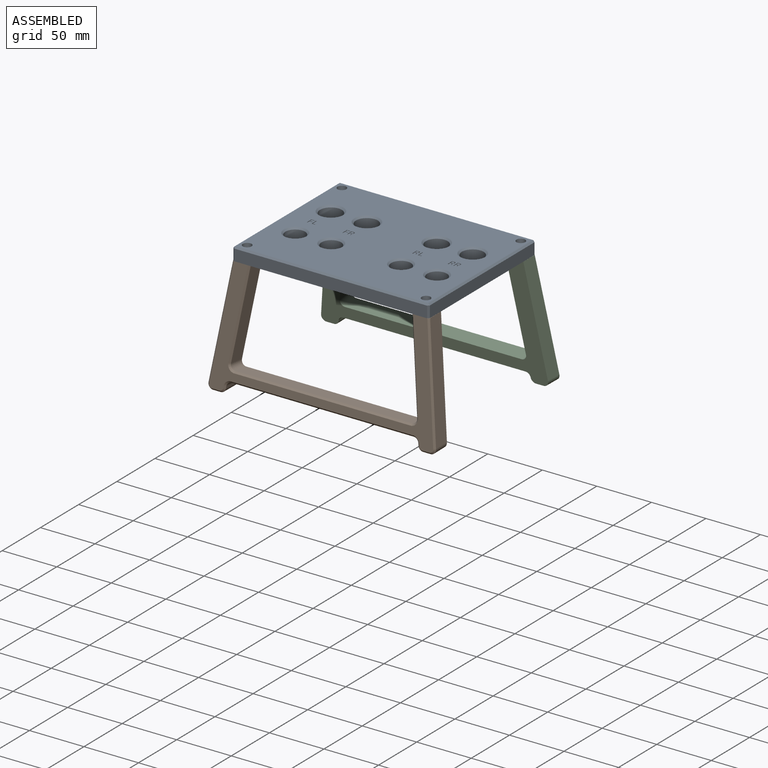
[diagram: assembled view]
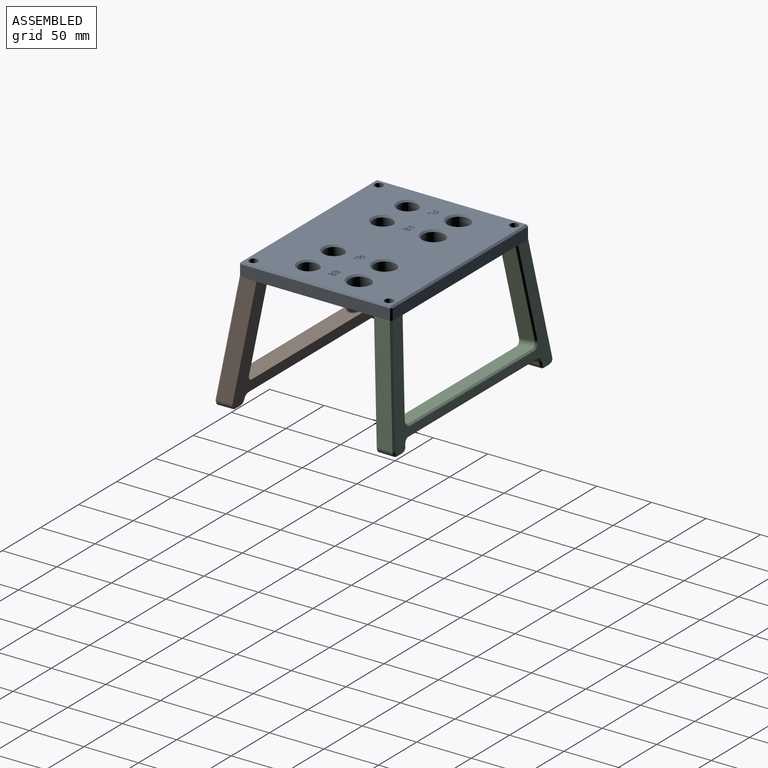
[diagram: assembled view, second angle]
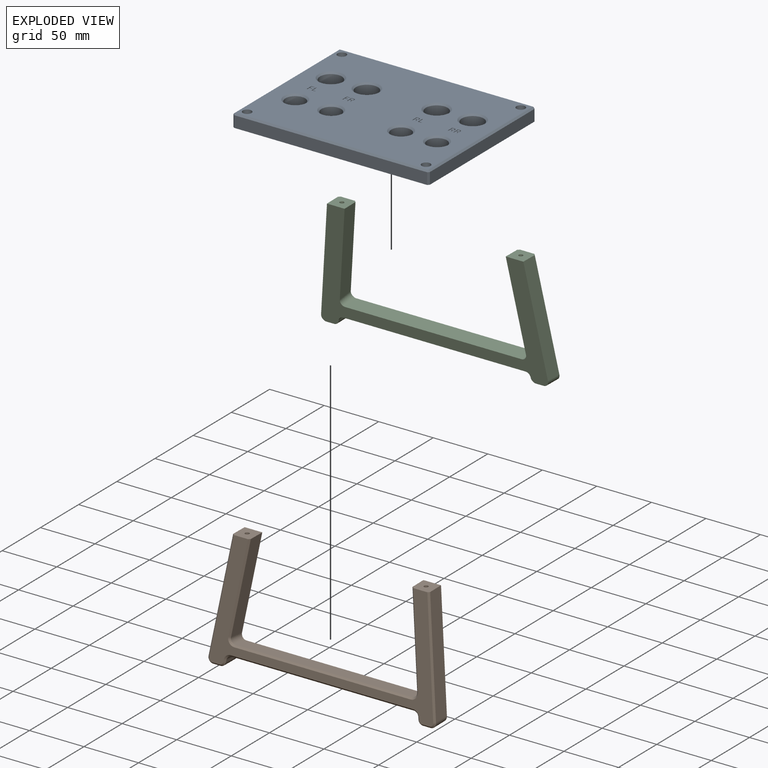
[diagram: exploded view]
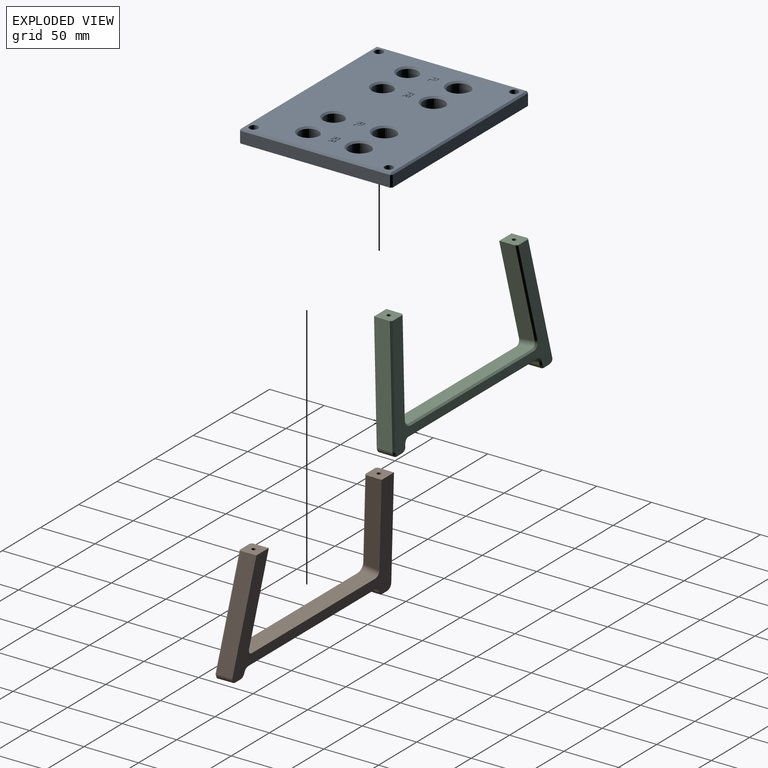
[diagram: exploded view, second angle]
ASSEMBLY  parts=3 mates=2
PART A: 162 faces, bbox 180x140x12 mm
  f0: plane 177x137mm, normal (0,0,1), area 20912.7mm2, adj f16,f19,f22,f25,f26,f27,f28,f29
  f1: plane 137x10.5mm, normal (1,0,0), area 1438.5mm2, adj f13,f20,f21,f25
  f2: plane 177x10.5mm, normal (0,1,0), area 1858.5mm2, adj f13,f14,f19,f20
  f3: plane 137x10.5mm, normal (-1,0,0), area 1438.5mm2, adj f13,f14,f15,f16
  f4: cylinder r=9mm len=18mm, axis (0,0,1), area 593.8mm2, adj f13,f27
  f5: cylinder r=9mm len=18mm, axis (0,0,1), area 593.8mm2, adj f13,f28
  f6: cylinder r=9mm len=18mm, axis (0,0,1), area 593.8mm2, adj f13,f29
  f7: cylinder r=10mm len=20mm, axis (0,0,1), area 659.7mm2, adj f13,f30
  f8: cylinder r=10mm len=20mm, axis (0,0,1), area 659.7mm2, adj f13,f31
  f9: cylinder r=10mm len=20mm, axis (0,0,1), area 659.7mm2, adj f13,f32
  f10: cylinder r=10mm len=20mm, axis (0,0,1), area 659.7mm2, adj f13,f33
  f11: plane 177x10.5mm, normal (0,-1,0), area 1858.5mm2, adj f13,f15,f21,f22
  f12: cylinder r=9mm len=18mm, axis (0,0,1), area 593.8mm2, adj f13,f26
  f13: plane 180x140mm, normal (0,0,-1), area 22865.6mm2, adj f1,f2,f3,f4,f5,f6,f7,f8
  f14: plane 10.5x1.5mm, normal (-0.71,0.71,0), area 22.3mm2, adj f2,f3,f13,f17
  f15: plane 10.5x1.5mm, normal (-0.71,-0.71,0), area 22.3mm2, adj f3,f11,f13,f18
  f16: plane 137x1.5mm, normal (-0.71,0,0.71), area 290.6mm2, adj f0,f3,f17,f18
  f17: plane 1.5x1.5mm, normal (-0.58,0.58,0.58), area 1.9mm2, adj f14,f16,f19
  f18: plane 1.5x1.5mm, normal (-0.58,-0.58,0.58), area 1.9mm2, adj f15,f16,f22
  f19: plane 177x1.5mm, normal (0,0.71,0.71), area 375.5mm2, adj f0,f2,f17,f23
  f20: plane 10.5x1.5mm, normal (0.71,0.71,0), area 22.3mm2, adj f1,f2,f13,f23
  f21: plane 10.5x1.5mm, normal (0.71,-0.71,0), area 22.3mm2, adj f1,f11,f13,f24
  f22: plane 177x1.5mm, normal (0,-0.71,0.71), area 375.5mm2, adj f0,f11,f18,f24
  f23: plane 1.5x1.5mm, normal (0.58,0.58,0.58), area 1.9mm2, adj f19,f20,f25
  f24: plane 1.5x1.5mm, normal (0.58,-0.58,0.58), area 1.9mm2, adj f21,f22,f25
  f25: plane 137x1.5mm, normal (0.71,0,0.71), area 290.6mm2, adj f0,f1,f23,f24
  f26: cone r=9mm half-angle=45deg, axis (0,0,1), area 130mm2, adj f0,f12
  f27: cone r=9mm half-angle=45deg, axis (0,0,1), area 130mm2, adj f0,f4
  f28: cone r=9mm half-angle=45deg, axis (0,0,1), area 130mm2, adj f0,f5
  f29: cone r=9mm half-angle=45deg, axis (0,0,1), area 130mm2, adj f0,f6
  f30: cone r=10mm half-angle=45deg, axis (0,0,1), area 143.3mm2, adj f0,f7
  f31: cone r=10mm half-angle=45deg, axis (0,0,1), area 143.3mm2, adj f0,f8
  f32: cone r=10mm half-angle=45deg, axis (0,0,1), area 143.3mm2, adj f0,f9
  f33: cone r=10mm half-angle=45deg, axis (0,0,1), area 143.3mm2, adj f0,f10
  f34: cylinder r=2.1mm len=7mm, axis (0,0,1), area 92.4mm2, adj f13,f35
  f35: plane 8x8mm, normal (0,0,1), area 36.4mm2, adj f34,f36
  f36: cylinder r=4mm len=8mm, axis (0,0,1), area 125.7mm2, adj f0,f35
  f37: cylinder r=2.1mm len=7mm, axis (0,0,1), area 92.4mm2, adj f13,f38
  f38: plane 8x8mm, normal (0,0,1), area 36.4mm2, adj f37,f39
  f39: cylinder r=4mm len=8mm, axis (0,0,1), area 125.7mm2, adj f0,f38
  f40: cylinder r=2.1mm len=7mm, axis (0,0,1), area 92.4mm2, adj f13,f41
  f41: plane 8x8mm, normal (0,0,1), area 36.4mm2, adj f40,f42
  f42: cylinder r=4mm len=8mm, axis (0,0,1), area 125.7mm2, adj f0,f41
  f43: cylinder r=2.1mm len=7mm, axis (0,0,1), area 92.4mm2, adj f13,f44
  f44: plane 8x8mm, normal (0,0,1), area 36.4mm2, adj f43,f45
  f45: cylinder r=4mm len=8mm, axis (0,0,1), area 125.7mm2, adj f0,f44
  f46: plane 5.95x1mm, normal (1,0,0), area 5.9mm2, adj f0,f47,f51,f52
  f47: plane 3.32x1mm, normal (0,1,0), area 3.3mm2, adj f0,f46,f48,f52
  f48: plane 1x0.63mm, normal (-1,0,0), area 0.6mm2, adj f0,f47,f49,f52
  f49: plane 2.63x1mm, normal (0,-1,0), area 2.6mm2, adj f0,f48,f50,f52
  f50: plane 5.32x1mm, normal (-1,0,0), area 5.3mm2, adj f0,f49,f51,f52
  f51: plane 1x0.69mm, normal (0,-1,0), area 0.7mm2, adj f0,f46,f50,f52
  f52: plane 5.95x3.32mm, normal (0,0,1), area 5.8mm2, adj f46,f47,f48,f49,f50,f51
  f53: plane 1x0.69mm, normal (0,1,0), area 0.7mm2, adj f0,f54,f62,f63
  f54: plane 2.54x1mm, normal (-1,0,0), area 2.5mm2, adj f0,f53,f55,f63
  f55: plane 2.47x1mm, normal (0,1,0), area 2.5mm2, adj f0,f54,f56,f63
  f56: plane 1x0.61mm, normal (-1,0,0), area 0.6mm2, adj f0,f55,f57,f63
  f57: plane 2.47x1mm, normal (0,-1,0), area 2.5mm2, adj f0,f56,f58,f63
  f58: plane 2.18x1mm, normal (-1,0,0), area 2.2mm2, adj f0,f57,f59,f63
  f59: plane 2.63x1mm, normal (0,1,0), area 2.6mm2, adj f0,f58,f60,f63
  f60: plane 1x0.61mm, normal (-1,0,0), area 0.6mm2, adj f0,f59,f61,f63
  f61: plane 3.32x1mm, normal (0,-1,0), area 3.3mm2, adj f0,f60,f62,f63
  f62: plane 5.95x1mm, normal (1,0,0), area 5.9mm2, adj f0,f53,f61,f63
  f63: plane 5.95x3.32mm, normal (0,0,1), area 7.2mm2, adj f53,f54,f55,f56,f57,f58,f59,f60
  f64: plane 5.95x1mm, normal (1,0,0), area 5.9mm2, adj f0,f65,f69,f70
  f65: plane 3.32x1mm, normal (0,1,0), area 3.3mm2, adj f0,f64,f66,f70
  f66: plane 1x0.63mm, normal (-1,0,0), area 0.6mm2, adj f0,f65,f67,f70
  f67: plane 2.63x1mm, normal (0,-1,0), area 2.6mm2, adj f0,f66,f68,f70
  f68: plane 5.32x1mm, normal (-1,0,0), area 5.3mm2, adj f0,f67,f69,f70
  f69: plane 1x0.69mm, normal (0,-1,0), area 0.7mm2, adj f0,f64,f68,f70
  f70: plane 5.95x3.32mm, normal (0,0,1), area 5.8mm2, adj f64,f65,f66,f67,f68,f69
  f71: plane 1x0.95mm, normal (0,-1,0), area 0.9mm2, adj f72,f88,f89,f158
  f72: plane 2.27x1mm, normal (-1,0,0), area 2.3mm2, adj f71,f73,f89,f158
  f73: plane 1x0.9mm, normal (0,1,0), area 0.9mm2, adj f72,f74,f89,f158
  f74: extruded ~1.12x1mm, area 1.2mm2, adj f73,f75,f89,f158
  f75: extruded ~1x0.85mm, area 1mm2, adj f74,f76,f89,f158
  f76: extruded ~1x0.87mm, area 1mm2, adj f75,f88,f89,f158
  f77: plane 2.47x1mm, normal (-1,0,0), area 2.5mm2, adj f0,f78,f87,f89
  f78: plane 1.24x1mm, normal (0,1,0), area 1.2mm2, adj f0,f77,f79,f89
  f79: plane 2.47x1.44mm, normal (0.86,0.5,0), area 2.9mm2, adj f0,f78,f80,f89
  f80: plane 1x0.82mm, normal (0,1,0), area 0.8mm2, adj f0,f79,f81,f89
  f81: plane 2.67x1.62mm, normal (-0.86,-0.52,0), area 3.1mm2, adj f0,f80,f82,f89
  f82: extruded ~1.6x1.2mm, area 2.2mm2, adj f0,f81,f83,f89
  f83: extruded ~1.26x1mm, area 1.4mm2, adj f0,f82,f84,f89
  f84: extruded ~1.62x1mm, area 1.7mm2, adj f0,f83,f85,f89
  f85: plane 1.63x1mm, normal (0,-1,0), area 1.6mm2, adj f0,f84,f86,f89
  f86: plane 5.95x1mm, normal (1,0,0), area 5.9mm2, adj f0,f85,f87,f89
  f87: plane 1x0.69mm, normal (0,1,0), area 0.7mm2, adj f0,f77,f86,f89
  f88: extruded ~1.07x1mm, area 1.1mm2, adj f71,f76,f89,f158
  f89: plane 5.95x4.19mm, normal (0,0,1), area 10.6mm2, adj f71,f72,f73,f74,f75,f76,f77,f78
  f90: plane 1x0.95mm, normal (0,-1,0), area 0.9mm2, adj f91,f107,f108,f159
  f91: plane 2.27x1mm, normal (-1,0,0), area 2.3mm2, adj f90,f92,f108,f159
  f92: plane 1x0.9mm, normal (0,1,0), area 0.9mm2, adj f91,f93,f108,f159
  f93: extruded ~1.12x1mm, area 1.2mm2, adj f92,f94,f108,f159
  f94: extruded ~1x0.85mm, area 1mm2, adj f93,f95,f108,f159
  f95: extruded ~1x0.87mm, area 1mm2, adj f94,f107,f108,f159
  f96: plane 2.47x1mm, normal (-1,0,0), area 2.5mm2, adj f0,f97,f106,f108
  f97: plane 1.24x1mm, normal (0,1,0), area 1.2mm2, adj f0,f96,f98,f108
  f98: plane 2.47x1.44mm, normal (0.86,0.5,0), area 2.9mm2, adj f0,f97,f99,f108
  f99: plane 1x0.82mm, normal (0,1,0), area 0.8mm2, adj f0,f98,f100,f108
  f100: plane 2.67x1.62mm, normal (-0.86,-0.52,0), area 3.1mm2, adj f0,f99,f101,f108
  f101: extruded ~1.6x1.2mm, area 2.2mm2, adj f0,f100,f102,f108
  f102: extruded ~1.26x1mm, area 1.4mm2, adj f0,f101,f103,f108
  f103: extruded ~1.62x1mm, area 1.7mm2, adj f0,f102,f104,f108
  f104: plane 1.63x1mm, normal (0,-1,0), area 1.6mm2, adj f0,f103,f105,f108
  f105: plane 5.95x1mm, normal (1,0,0), area 5.9mm2, adj f0,f104,f106,f108
  f106: plane 1x0.69mm, normal (0,1,0), area 0.7mm2, adj f0,f96,f105,f108
  f107: extruded ~1.07x1mm, area 1.1mm2, adj f90,f95,f108,f159
  f108: plane 5.95x4.19mm, normal (0,0,1), area 10.6mm2, adj f90,f91,f92,f93,f94,f95,f96,f97
  f109: plane 1x0.95mm, normal (0,-1,0), area 0.9mm2, adj f110,f126,f127,f160
  f110: plane 2.27x1mm, normal (-1,0,0), area 2.3mm2, adj f109,f111,f127,f160
  f111: plane 1x0.9mm, normal (0,1,0), area 0.9mm2, adj f110,f112,f127,f160
  f112: extruded ~1.12x1mm, area 1.2mm2, adj f111,f113,f127,f160
  f113: extruded ~1x0.85mm, area 1mm2, adj f112,f114,f127,f160
  f114: extruded ~1x0.87mm, area 1mm2, adj f113,f126,f127,f160
  f115: plane 2.47x1mm, normal (-1,0,0), area 2.5mm2, adj f0,f116,f125,f127
  f116: plane 1.24x1mm, normal (0,1,0), area 1.2mm2, adj f0,f115,f117,f127
  f117: plane 2.47x1.44mm, normal (0.86,0.5,0), area 2.9mm2, adj f0,f116,f118,f127
  f118: plane 1x0.82mm, normal (0,1,0), area 0.8mm2, adj f0,f117,f119,f127
  f119: plane 2.67x1.62mm, normal (-0.86,-0.52,0), area 3.1mm2, adj f0,f118,f120,f127
  f120: extruded ~1.6x1.2mm, area 2.2mm2, adj f0,f119,f121,f127
  f121: extruded ~1.26x1mm, area 1.4mm2, adj f0,f120,f122,f127
  f122: extruded ~1.62x1mm, area 1.7mm2, adj f0,f121,f123,f127
  f123: plane 1.63x1mm, normal (0,-1,0), area 1.6mm2, adj f0,f122,f124,f127
  f124: plane 5.95x1mm, normal (1,0,0), area 5.9mm2, adj f0,f123,f125,f127
  f125: plane 1x0.69mm, normal (0,1,0), area 0.7mm2, adj f0,f115,f124,f127
  f126: extruded ~1.07x1mm, area 1.1mm2, adj f109,f114,f127,f160
  f127: plane 5.95x4.19mm, normal (0,0,1), area 10.6mm2, adj f109,f110,f111,f112,f113,f114,f115,f116
  f128: plane 1x0.95mm, normal (0,-1,0), area 0.9mm2, adj f129,f145,f146,f161
  f129: plane 2.27x1mm, normal (-1,0,0), area 2.3mm2, adj f128,f130,f146,f161
  f130: plane 1x0.9mm, normal (0,1,0), area 0.9mm2, adj f129,f131,f146,f161
  f131: extruded ~1.12x1mm, area 1.2mm2, adj f130,f132,f146,f161
  f132: extruded ~1x0.85mm, area 1mm2, adj f131,f133,f146,f161
  f133: extruded ~1x0.87mm, area 1mm2, adj f132,f145,f146,f161
  f134: plane 2.47x1mm, normal (-1,0,0), area 2.5mm2, adj f0,f135,f144,f146
  f135: plane 1.24x1mm, normal (0,1,0), area 1.2mm2, adj f0,f134,f136,f146
  f136: plane 2.47x1.44mm, normal (0.86,0.5,0), area 2.9mm2, adj f0,f135,f137,f146
  f137: plane 1x0.82mm, normal (0,1,0), area 0.8mm2, adj f0,f136,f138,f146
  f138: plane 2.67x1.62mm, normal (-0.86,-0.52,0), area 3.1mm2, adj f0,f137,f139,f146
  f139: extruded ~1.6x1.2mm, area 2.2mm2, adj f0,f138,f140,f146
  f140: extruded ~1.26x1mm, area 1.4mm2, adj f0,f139,f141,f146
  f141: extruded ~1.62x1mm, area 1.7mm2, adj f0,f140,f142,f146
  f142: plane 1.63x1mm, normal (0,-1,0), area 1.6mm2, adj f0,f141,f143,f146
  f143: plane 5.95x1mm, normal (1,0,0), area 5.9mm2, adj f0,f142,f144,f146
  f144: plane 1x0.69mm, normal (0,1,0), area 0.7mm2, adj f0,f134,f143,f146
  f145: extruded ~1.07x1mm, area 1.1mm2, adj f128,f133,f146,f161
  f146: plane 5.95x4.19mm, normal (0,0,1), area 10.6mm2, adj f128,f129,f130,f131,f132,f133,f134,f135
  f147: plane 1x0.69mm, normal (0,1,0), area 0.7mm2, adj f0,f148,f156,f157
  f148: plane 2.54x1mm, normal (-1,0,0), area 2.5mm2, adj f0,f147,f149,f157
  f149: plane 2.47x1mm, normal (0,1,0), area 2.5mm2, adj f0,f148,f150,f157
  f150: plane 1x0.61mm, normal (-1,0,0), area 0.6mm2, adj f0,f149,f151,f157
  f151: plane 2.47x1mm, normal (0,-1,0), area 2.5mm2, adj f0,f150,f152,f157
  f152: plane 2.18x1mm, normal (-1,0,0), area 2.2mm2, adj f0,f151,f153,f157
  f153: plane 2.63x1mm, normal (0,1,0), area 2.6mm2, adj f0,f152,f154,f157
  f154: plane 1x0.61mm, normal (-1,0,0), area 0.6mm2, adj f0,f153,f155,f157
  f155: plane 3.32x1mm, normal (0,-1,0), area 3.3mm2, adj f0,f154,f156,f157
  f156: plane 5.95x1mm, normal (1,0,0), area 5.9mm2, adj f0,f147,f155,f157
  f157: plane 5.95x3.32mm, normal (0,0,1), area 7.2mm2, adj f147,f148,f149,f150,f151,f152,f153,f154
  f158: plane 2.36x2.27mm, normal (0,0,1), area 4.9mm2, adj f71,f72,f73,f74,f75,f76,f88
  f159: plane 2.36x2.27mm, normal (0,0,1), area 4.9mm2, adj f90,f91,f92,f93,f94,f95,f107
  f160: plane 2.36x2.27mm, normal (0,0,1), area 4.9mm2, adj f109,f110,f111,f112,f113,f114,f126
  f161: plane 2.36x2.27mm, normal (0,0,1), area 4.9mm2, adj f128,f129,f130,f131,f132,f133,f145
PART B: 44 faces, bbox 209.2x108.1x16.9 mm
  f0: plane 102.55x14.5mm, normal (-0.99,0.14,0), area 1475.2mm2, adj f4,f10,f18,f26
  f1: plane 14.5x1.85mm, normal (0.99,-0.14,0), area 14mm2, adj f4,f19,f22,f30
  f2: plane 14.5x1.85mm, normal (-0.99,-0.14,0), area 14mm2, adj f4,f20,f23,f34
  f3: plane 102.55x14.5mm, normal (0.99,0.14,0), area 1475.2mm2, adj f4,f11,f21,f38
  f4: plane 208.38x106.33mm, normal (0,0,1), area 5160.8mm2, adj f0,f1,f2,f3,f5,f6,f7,f8
  f5: plane 166.9x14.5mm, normal (0,-1,0), area 2420.1mm2, adj f4,f22,f23,f32
  f6: plane 82.77x14.5mm, normal (-0.99,-0.14,0), area 1198.6mm2, adj f4,f11,f24,f39
  f7: plane 161.57x14.5mm, normal (0,1,0), area 2342.8mm2, adj f4,f24,f25,f41
  f8: plane 82.77x14.5mm, normal (0.99,-0.14,0), area 1198.6mm2, adj f4,f10,f25,f43
  f9: plane 205.64x104.36mm, normal (0,0,-1), area 3999.3mm2, adj f10,f11,f26,f27,f28,f29,f30,f31
  f10: plane 16.4x16mm, normal (0,0.99,-0.12), area 246.8mm2, adj f0,f4,f8,f9,f17,f26,f43
  f11: plane 16.4x16mm, normal (0,0.99,-0.12), area 246.8mm2, adj f3,f4,f6,f9,f15,f38,f39
  f12: plane 14.32x7.11mm, normal (0,-0.99,0.12), area 99mm2, adj f4,f20,f21,f36
  f13: plane 14.32x7.11mm, normal (0,-0.99,0.12), area 99mm2, adj f4,f18,f19,f28
  f14: cone r=0mm half-angle=59deg, axis (0,0.99,-0.12), area 13.2mm2, adj f15
  f15: cylinder r=1.9mm len=20.31mm, axis (0,0.99,-0.12), area 238.8mm2, adj f11,f14
  f16: cone r=0mm half-angle=59deg, axis (0,0.99,-0.12), area 13.2mm2, adj f17
  f17: cylinder r=1.9mm len=20.31mm, axis (0,0.99,-0.12), area 238.8mm2, adj f10,f16
  f18: cylinder r=4.6mm len=15.44mm, axis (0.02,0.12,0.99), area 114.1mm2, adj f0,f4,f13,f27
  f19: cylinder r=4.6mm len=15.44mm, axis (-0.02,-0.12,-0.99), area 95.8mm2, adj f1,f4,f13,f29
  f20: cylinder r=4.6mm len=15.44mm, axis (-0.02,0.12,0.99), area 95.8mm2, adj f2,f4,f12,f35
  f21: cylinder r=4.6mm len=15.44mm, axis (0.02,-0.12,-0.99), area 114.1mm2, adj f3,f4,f12,f37
  f22: cylinder r=4.6mm len=14.5mm, axis (0,0,1), area 95.6mm2, adj f1,f4,f5,f31
  f23: cylinder r=4.6mm len=14.5mm, axis (0,0,-1), area 95.6mm2, adj f2,f4,f5,f33
  f24: cylinder r=4.6mm len=14.5mm, axis (0,0,-1), area 114mm2, adj f4,f6,f7,f40
  f25: cylinder r=4.6mm len=14.5mm, axis (0,0,1), area 114mm2, adj f4,f7,f8,f42
  f26: plane 100.97x15.48mm, normal (-0.7,0.1,-0.71), area 215.8mm2, adj f0,f9,f10,f27
  f27: bspline ~5.25x4.74mm, area 14.5mm2, adj f9,f18,f26,f28
  f28: plane 6.87x1.68mm, normal (0,-0.75,-0.66), area 15.4mm2, adj f9,f13,f27,f29
  f29: bspline ~4.56x4.19mm, area 12.2mm2, adj f9,f19,f28,f30
  f30: plane 2.05x1.74mm, normal (0.7,-0.1,-0.71), area 4mm2, adj f1,f9,f29,f31
  f31: cone r=6.1mm half-angle=45deg, axis (0,0,-1), area 16.3mm2, adj f9,f22,f30,f32
  f32: plane 166.9x1.5mm, normal (0,-0.71,-0.71), area 354.1mm2, adj f5,f9,f31,f33
  f33: cone r=6.1mm half-angle=45deg, axis (0,0,-1), area 16.3mm2, adj f9,f23,f32,f34
  f34: plane 2.05x1.74mm, normal (-0.7,-0.1,-0.71), area 4mm2, adj f2,f9,f33,f35
  f35: bspline ~4.56x4.19mm, area 12.2mm2, adj f9,f20,f34,f36
  f36: plane 6.87x1.68mm, normal (0,-0.75,-0.66), area 15.4mm2, adj f9,f12,f35,f37
  f37: bspline ~5.25x4.74mm, area 14.5mm2, adj f9,f21,f36,f38
  f38: plane 100.97x15.48mm, normal (0.7,0.1,-0.71), area 215.8mm2, adj f3,f9,f11,f37
  f39: plane 80.99x12.73mm, normal (-0.7,-0.1,-0.71), area 173mm2, adj f6,f9,f11,f40
  f40: cone r=6.1mm half-angle=45deg, axis (0,0,-1), area 19.4mm2, adj f9,f24,f39,f41
  f41: plane 161.57x1.5mm, normal (0,0.71,-0.71), area 342.7mm2, adj f7,f9,f40,f42
  f42: cone r=6.1mm half-angle=45deg, axis (0,0,-1), area 19.4mm2, adj f9,f25,f41,f43
  f43: plane 80.99x12.73mm, normal (0.7,-0.1,-0.71), area 173mm2, adj f8,f9,f10,f42
PART C: same geometry as B
PLACE A at identity fixed
PLACE B rot(axis=(0,-0.75,-0.66),180deg) t=(0,-74.98,-118.22)mm
PLACE C rot(axis=(1,0,0),97deg) t=(0,74.98,-118.22)mm
MATE fastened A.f43 <-> C.f17  axis (0,0,-1) through (-82,62,-12)mm
MATE fastened A.f40 <-> B.f15  axis (0,0,-1) through (-82,-62,-12)mm
